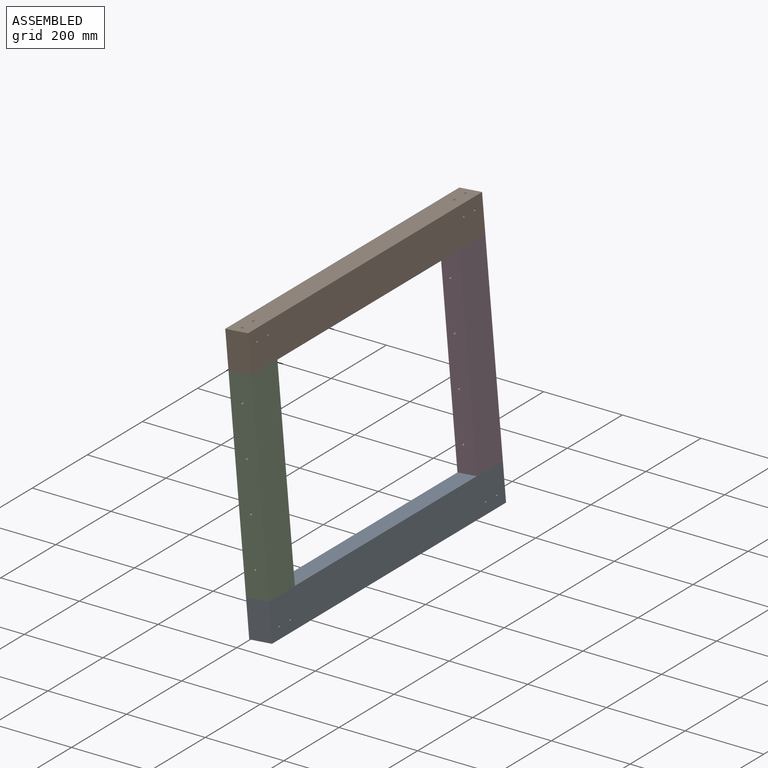
[diagram: assembled view]
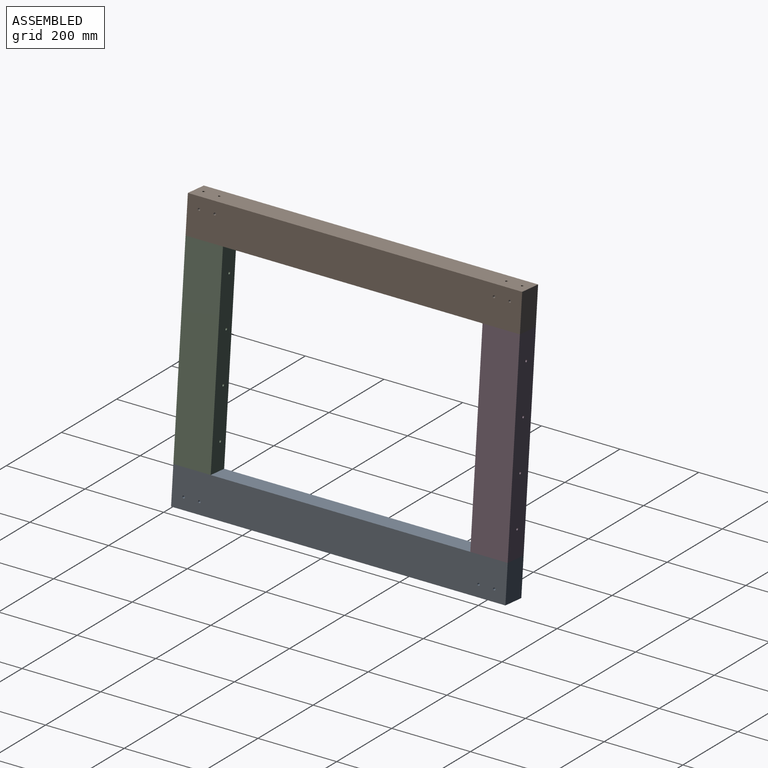
[diagram: assembled view, second angle]
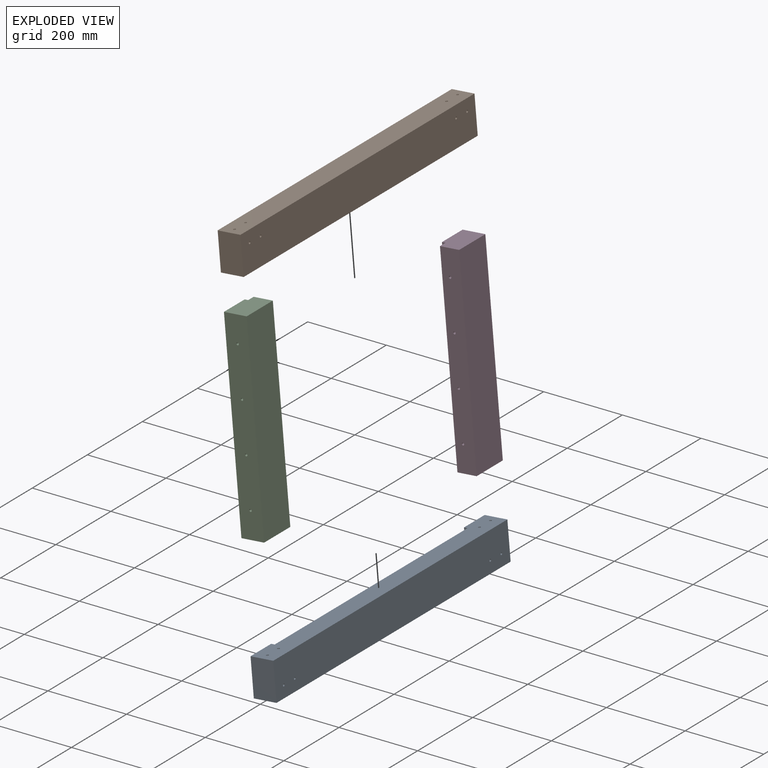
[diagram: exploded view]
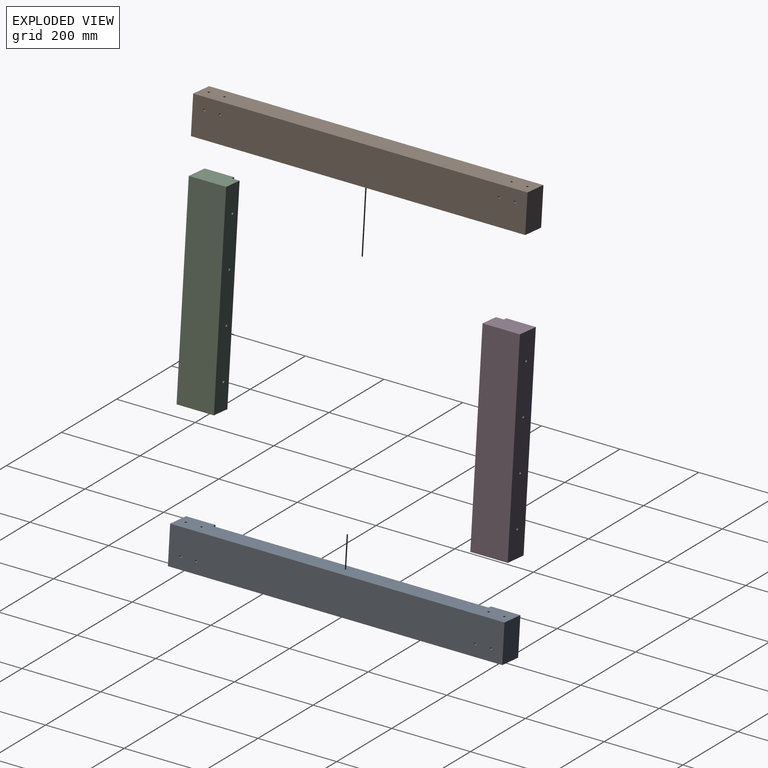
[diagram: exploded view, second angle]
ASSEMBLY  parts=4 mates=3
PART A: 18 faces, bbox 58x850x95 mm
  f0: plane 850x95mm, normal (-1,0,0), area 66636.9mm2, adj f1,f3,f4,f5,f10,f11,f12,f13
  f1: plane 850x58mm, normal (0,0,-1), area 49186.9mm2, adj f0,f2,f4,f5,f6,f7,f8,f9
  f2: plane 850x95mm, normal (1,0,0), area 80636.9mm2, adj f1,f3,f4,f5,f10,f11,f12,f13
  f3: plane 850x58mm, normal (0,0,1), area 42886.9mm2, adj f0,f2,f4,f5,f6,f7,f8,f9
  f4: plane 95x58mm, normal (0,-1,0), area 5510mm2, adj f0,f1,f2,f3
  f5: plane 95x58mm, normal (0,1,0), area 5510mm2, adj f0,f1,f2,f3
  f6: cylinder r=3mm len=95mm, axis (0,0,-1), area 1790.7mm2, adj f1,f3
  f7: cylinder r=3mm len=95mm, axis (0,0,-1), area 1790.7mm2, adj f1,f3
  f8: cylinder r=3mm len=95mm, axis (0,0,-1), area 1790.7mm2, adj f1,f3
  f9: cylinder r=3mm len=95mm, axis (0,0,-1), area 1790.7mm2, adj f1,f3
  f10: cylinder r=3mm len=58mm, axis (1,0,0), area 1093.3mm2, adj f0,f2
  f11: cylinder r=3mm len=58mm, axis (1,0,0), area 1093.3mm2, adj f0,f2
  f12: cylinder r=3mm len=58mm, axis (1,0,0), area 1093.3mm2, adj f0,f2
  f13: cylinder r=3mm len=58mm, axis (1,0,0), area 1093.3mm2, adj f0,f2
  f14: plane 20x9mm, normal (0,1,0), area 180mm2, adj f0,f3,f16,f17
  f15: plane 20x9mm, normal (0,-1,0), area 180mm2, adj f0,f3,f16,f17
  f16: plane 700x9mm, normal (0,0,1), area 6300mm2, adj f0,f14,f15,f17
  f17: plane 700x20mm, normal (-1,0,0), area 14000mm2, adj f3,f14,f15,f16
PART B: same geometry as A
PART C: 12 faces, bbox 58x510x95 mm
  f0: plane 510x49mm, normal (0,0,1), area 24876.9mm2, adj f2,f4,f5,f7,f8,f9,f10,f11
  f1: plane 510x75mm, normal (-1,0,0), area 38250mm2, adj f2,f3,f5,f6
  f2: plane 95x58mm, normal (0,-1,0), area 5330mm2, adj f0,f1,f3,f4,f6,f7
  f3: plane 510x58mm, normal (0,0,-1), area 29466.9mm2, adj f1,f2,f4,f5,f8,f9,f10,f11
  f4: plane 510x95mm, normal (1,0,0), area 48450mm2, adj f0,f2,f3,f5
  f5: plane 95x58mm, normal (0,1,0), area 5330mm2, adj f0,f1,f3,f4,f6,f7
  f6: plane 510x9mm, normal (0,0,1), area 4590mm2, adj f1,f2,f5,f7
  f7: plane 510x20mm, normal (-1,0,0), area 10200mm2, adj f0,f2,f5,f6
  f8: cylinder r=3mm len=95mm, axis (0,0,-1), area 1790.7mm2, adj f0,f3
  f9: cylinder r=3mm len=95mm, axis (0,0,-1), area 1790.7mm2, adj f0,f3
  f10: cylinder r=3mm len=95mm, axis (0,0,-1), area 1790.7mm2, adj f0,f3
  f11: cylinder r=3mm len=95mm, axis (0,0,-1), area 1790.7mm2, adj f0,f3
PART D: same geometry as C
PLACE A rot(axis=(0,-1,0),5deg) t=(6.2,36.4,-303.97)mm
PLACE B rot(axis=(-1,0,-0.04),180deg) t=(-46.53,-813.6,298.73)mm
PLACE C rot(axis=(-1,-0.04,-0.04),90.1deg) t=(2.06,-766.1,-256.65)mm
PLACE D rot(axis=(1,-0.04,0.04),90.1deg) t=(-42.39,-11.1,251.41)mm
MATE fastened D.f3 <-> A.f5  axis (0,1,0) through (30.95,36.4,-254.12)mm
MATE fastened C.f5 <-> A.f3  axis (0.09,0,-1) through (30.95,-813.6,-254.12)mm
MATE fastened B.f3 <-> D.f5  axis (0.09,0,-1) through (-13.5,36.4,253.94)mm
